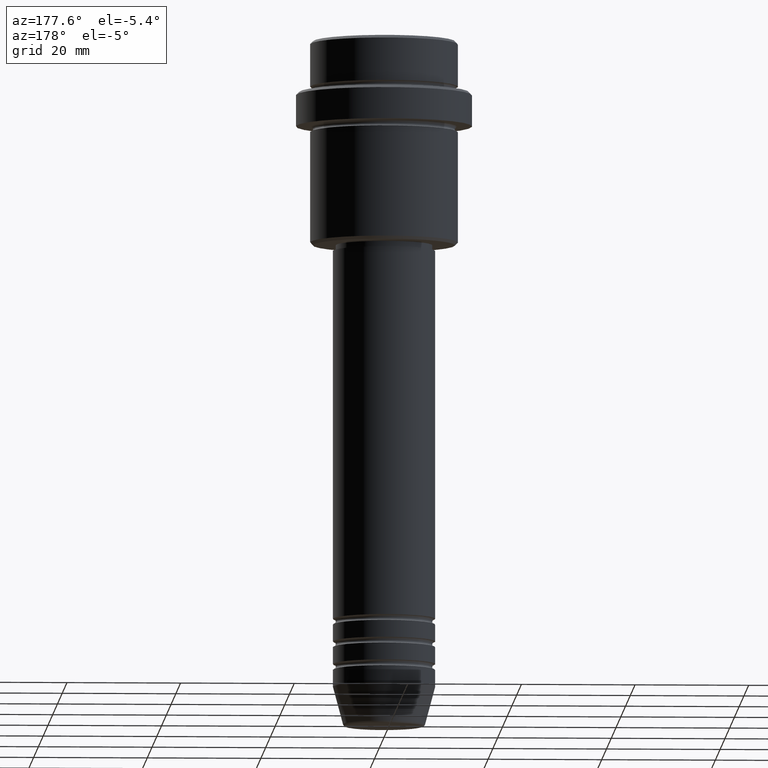
[diagram: clean part render]
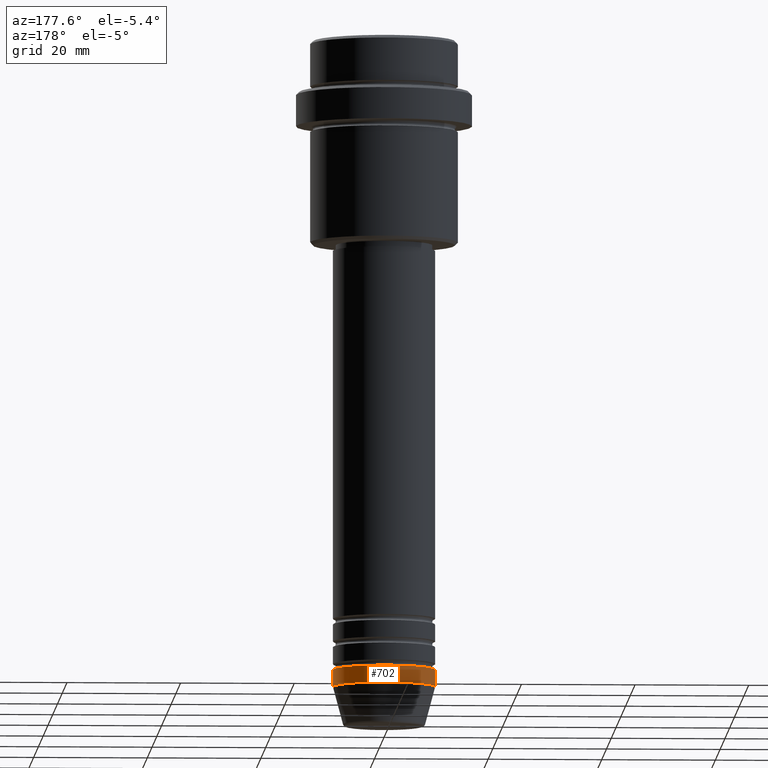
[diagram: same view with one face highlighted and labeled with its STEP entity id]
A machine part, auxiliary view. The second image highlights one B-rep face of the part: STEP entity #702.
In plain terms, the highlighted cylindrical surface (partial cylindrical patch) has radius 9 mm, axis along (-0, -0, 1).
Its self-contained STEP definition (entity closure, byte-faithful):
#5 = ORIENTED_EDGE ( 'NONE', *, *, #440, .F. ) ;
#100 = DIRECTION ( 'NONE',  ( -0.000000000000000000, -0.000000000000000000, 1.000000000000000000 ) ) ;
#129 = CARTESIAN_POINT ( 'NONE',  ( 0.000000000000000000, 0.000000000000000000, -114.0000000000000000 ) ) ;
#169 = VERTEX_POINT ( 'NONE', #846 ) ;
#180 = VERTEX_POINT ( 'NONE', #1164 ) ;
#243 = LINE ( 'NONE', #1207, #907 ) ;
#248 = CIRCLE ( 'NONE', #818, 9.000000000000000000 ) ;
#306 = LINE ( 'NONE', #1173, #954 ) ;
#352 = ORIENTED_EDGE ( 'NONE', *, *, #1142, .T. ) ;
#435 = DIRECTION ( 'NONE',  ( 1.000000000000000000, 0.000000000000000000, 0.000000000000000000 ) ) ;
#438 = ORIENTED_EDGE ( 'NONE', *, *, #1085, .T. ) ;
#440 = EDGE_CURVE ( 'NONE', #180, #504, #243, .T. ) ;
#452 = CARTESIAN_POINT ( 'NONE',  ( -9.000000000000000000, 1.102182119232617714E-15, -114.0000000000000000 ) ) ;
#464 = CARTESIAN_POINT ( 'NONE',  ( 0.000000000000000000, 0.000000000000000000, -111.0000000000000000 ) ) ;
#478 = EDGE_CURVE ( 'NONE', #504, #169, #248, .T. ) ;
#504 = VERTEX_POINT ( 'NONE', #1111 ) ;
#547 = DIRECTION ( 'NONE',  ( -0.000000000000000000, -0.000000000000000000, 1.000000000000000000 ) ) ;
#631 = EDGE_LOOP ( 'NONE', ( #352, #438, #712, #5 ) ) ;
#702 = ADVANCED_FACE ( 'NONE', ( #1403 ), #847, .T. ) ;
#712 = ORIENTED_EDGE ( 'NONE', *, *, #478, .F. ) ;
#761 = DIRECTION ( 'NONE',  ( 1.000000000000000000, 0.000000000000000000, 0.000000000000000000 ) ) ;
#818 = AXIS2_PLACEMENT_3D ( 'NONE', #464, #899, #1119 ) ;
#846 = CARTESIAN_POINT ( 'NONE',  ( -9.000000000000000000, 1.102182119232617714E-15, -111.0000000000000000 ) ) ;
#847 = CYLINDRICAL_SURFACE ( 'NONE', #884, 9.000000000000000000 ) ;
#884 = AXIS2_PLACEMENT_3D ( 'NONE', #1197, #547, #761 ) ;
#888 = DIRECTION ( 'NONE',  ( -0.000000000000000000, -0.000000000000000000, 1.000000000000000000 ) ) ;
#899 = DIRECTION ( 'NONE',  ( -0.000000000000000000, -0.000000000000000000, 1.000000000000000000 ) ) ;
#907 = VECTOR ( 'NONE', #913, 1000.000000000000000 ) ;
#913 = DIRECTION ( 'NONE',  ( -0.000000000000000000, -0.000000000000000000, 1.000000000000000000 ) ) ;
#954 = VECTOR ( 'NONE', #100, 1000.000000000000000 ) ;
#1000 = AXIS2_PLACEMENT_3D ( 'NONE', #129, #888, #435 ) ;
#1085 = EDGE_CURVE ( 'NONE', #1253, #169, #306, .T. ) ;
#1111 = CARTESIAN_POINT ( 'NONE',  ( 9.000000000000000000, 0.000000000000000000, -111.0000000000000000 ) ) ;
#1119 = DIRECTION ( 'NONE',  ( 1.000000000000000000, 0.000000000000000000, 0.000000000000000000 ) ) ;
#1142 = EDGE_CURVE ( 'NONE', #180, #1253, #1316, .T. ) ;
#1164 = CARTESIAN_POINT ( 'NONE',  ( 9.000000000000000000, 0.000000000000000000, -114.0000000000000000 ) ) ;
#1173 = CARTESIAN_POINT ( 'NONE',  ( -9.000000000000000000, 1.102182119232617714E-15, 0.000000000000000000 ) ) ;
#1197 = CARTESIAN_POINT ( 'NONE',  ( 0.000000000000000000, 0.000000000000000000, 0.000000000000000000 ) ) ;
#1207 = CARTESIAN_POINT ( 'NONE',  ( 9.000000000000000000, 0.000000000000000000, 0.000000000000000000 ) ) ;
#1253 = VERTEX_POINT ( 'NONE', #452 ) ;
#1316 = CIRCLE ( 'NONE', #1000, 9.000000000000000000 ) ;
#1403 = FACE_OUTER_BOUND ( 'NONE', #631, .T. ) ;